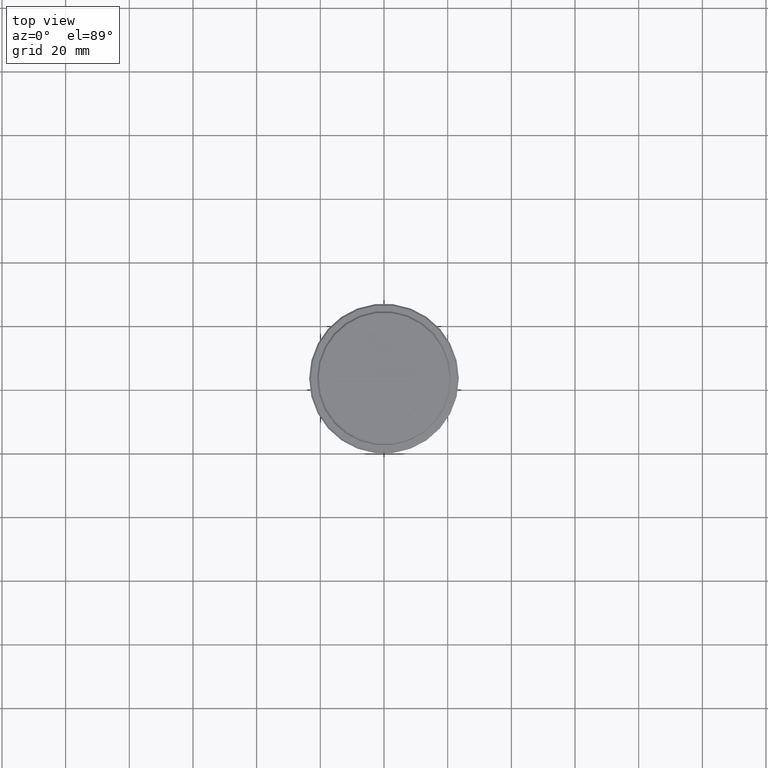
[diagram: clean part render]
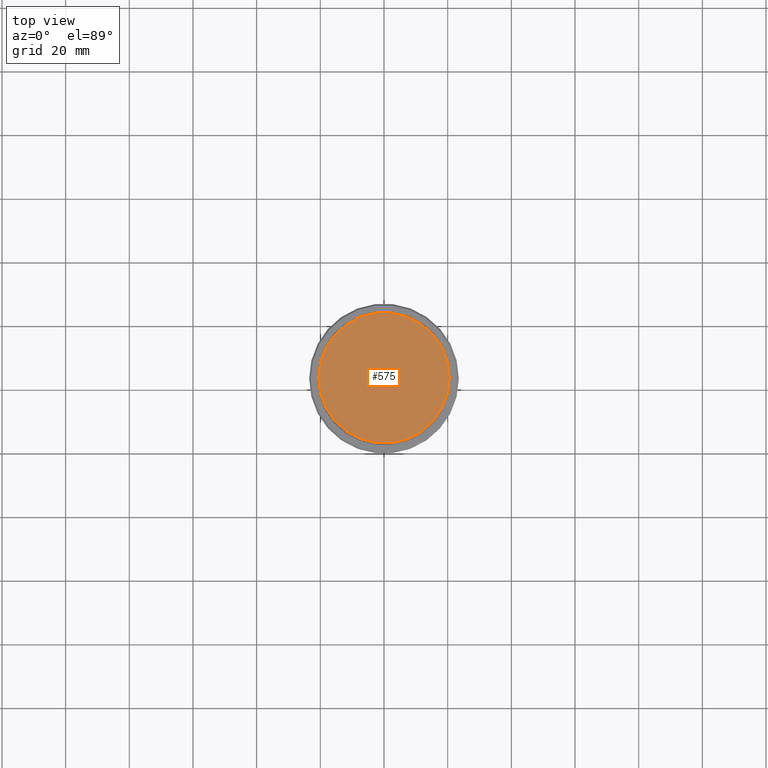
[diagram: same view with one face highlighted and labeled with its STEP entity id]
A machine part, top view. The second image highlights one B-rep face of the part: STEP entity #575.
In plain terms, the highlighted planar face has unit normal (0, -0, 1).
Its self-contained STEP definition (entity closure, byte-faithful):
#90 = DIRECTION ( 'NONE',  ( 0.000000000000000000, -0.000000000000000000, 1.000000000000000000 ) ) ;
#95 = CARTESIAN_POINT ( 'NONE',  ( -20.49999999999998934, 0.000000000000000000, 0.000000000000000000 ) ) ;
#144 = DIRECTION ( 'NONE',  ( -0.000000000000000000, -0.000000000000000000, 1.000000000000000000 ) ) ;
#160 = DIRECTION ( 'NONE',  ( 1.000000000000000000, 0.000000000000000000, 0.000000000000000000 ) ) ;
#197 = CIRCLE ( 'NONE', #218, 20.49999999999998934 ) ;
#206 = ORIENTED_EDGE ( 'NONE', *, *, #498, .T. ) ;
#218 = AXIS2_PLACEMENT_3D ( 'NONE', #1226, #144, #1017 ) ;
#306 = DIRECTION ( 'NONE',  ( 1.000000000000000000, 0.000000000000000000, 0.000000000000000000 ) ) ;
#468 = VERTEX_POINT ( 'NONE', #817 ) ;
#498 = EDGE_CURVE ( 'NONE', #468, #1180, #1316, .T. ) ;
#499 = DIRECTION ( 'NONE',  ( -0.000000000000000000, -0.000000000000000000, 1.000000000000000000 ) ) ;
#524 = FACE_OUTER_BOUND ( 'NONE', #541, .T. ) ;
#541 = EDGE_LOOP ( 'NONE', ( #1021, #206 ) ) ;
#575 = ADVANCED_FACE ( 'NONE', ( #524 ), #843, .T. ) ;
#600 = AXIS2_PLACEMENT_3D ( 'NONE', #1270, #90, #306 ) ;
#817 = CARTESIAN_POINT ( 'NONE',  ( 20.49999999999998934, 2.541142108230757480E-15, 0.000000000000000000 ) ) ;
#843 = PLANE ( 'NONE',  #600 ) ;
#913 = AXIS2_PLACEMENT_3D ( 'NONE', #1337, #499, #160 ) ;
#1017 = DIRECTION ( 'NONE',  ( 1.000000000000000000, 0.000000000000000000, 0.000000000000000000 ) ) ;
#1021 = ORIENTED_EDGE ( 'NONE', *, *, #1358, .T. ) ;
#1180 = VERTEX_POINT ( 'NONE', #95 ) ;
#1226 = CARTESIAN_POINT ( 'NONE',  ( 0.000000000000000000, 0.000000000000000000, 0.000000000000000000 ) ) ;
#1270 = CARTESIAN_POINT ( 'NONE',  ( 0.000000000000000000, 0.000000000000000000, 0.000000000000000000 ) ) ;
#1316 = CIRCLE ( 'NONE', #913, 20.49999999999998934 ) ;
#1337 = CARTESIAN_POINT ( 'NONE',  ( 0.000000000000000000, 0.000000000000000000, 0.000000000000000000 ) ) ;
#1358 = EDGE_CURVE ( 'NONE', #1180, #468, #197, .T. ) ;